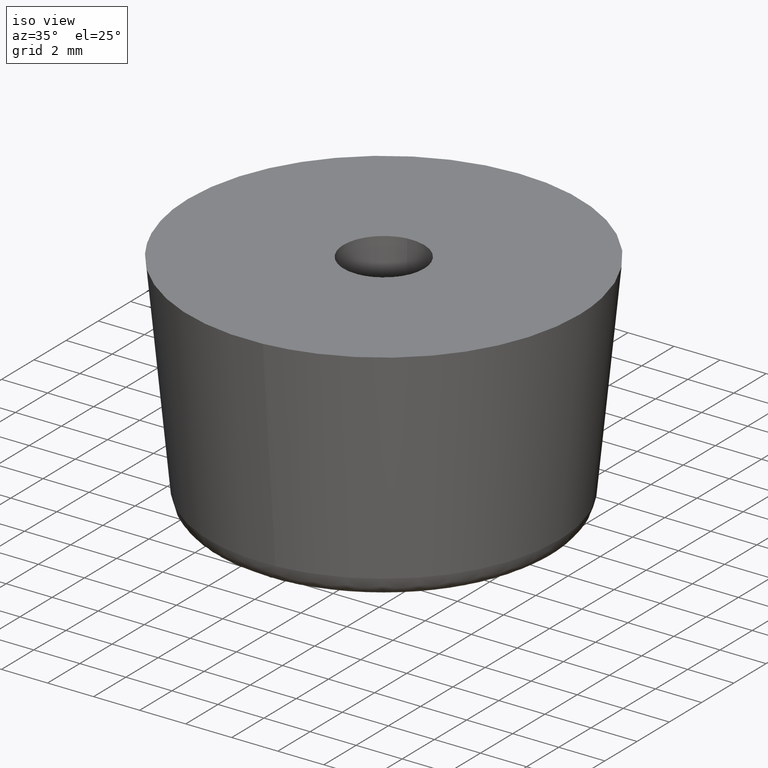
[diagram: clean part render]
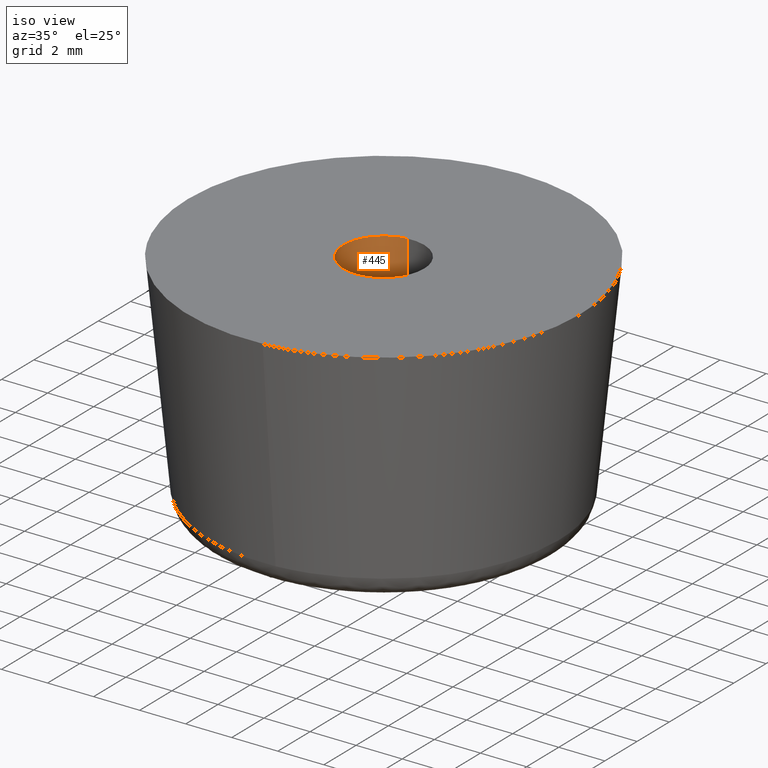
[diagram: same view with one face highlighted and labeled with its STEP entity id]
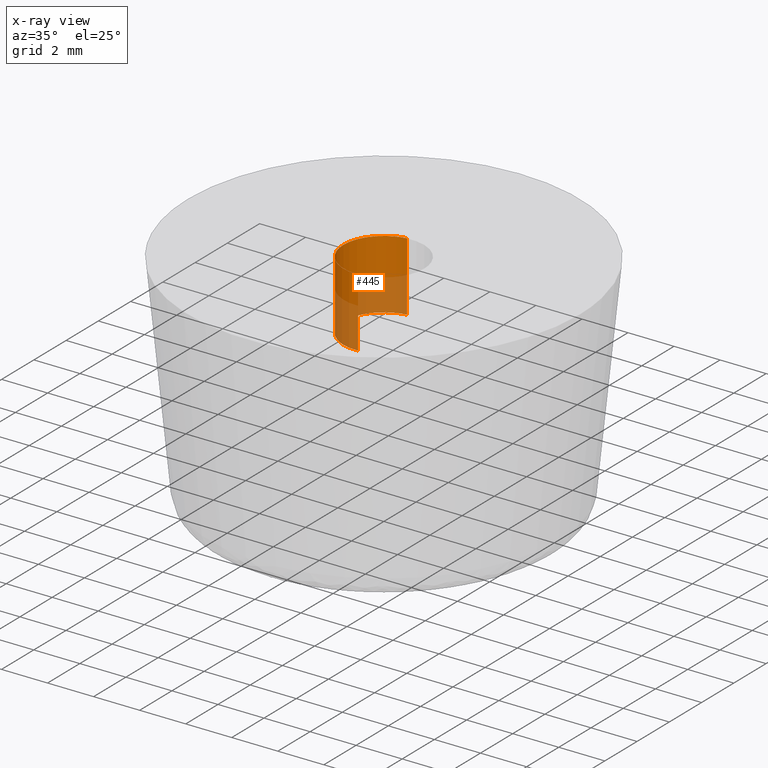
[diagram: x-ray of the same camera — body ghosted, the highlighted face saturated]
A machine part, iso view. The second image highlights one B-rep face of the part: STEP entity #445.
The next image is the same camera in x-ray: the body ghosted, the highlighted face saturated — about 47% of this face is hidden behind the body in this view.
In plain terms, the highlighted face is a freeform B-spline surface patch.
Its self-contained STEP definition (entity closure, byte-faithful):
#282=CARTESIAN_POINT('',(-0.206559910658016,1.737766671135383,10.0));
#283=VERTEX_POINT('',#282);
#301=CARTESIAN_POINT('',(-0.206559910658016,1.737766671135383,7.0));
#302=VERTEX_POINT('',#301);
#303=CARTESIAN_POINT('',(-0.206559910658016,1.737766671135383,10.0));
#304=CARTESIAN_POINT('',(-0.206559910658016,1.737766671135383,7.0));
#305=QUASI_UNIFORM_CURVE('',1,(#303,#304),.UNSPECIFIED.,.F.,.U.);
#306=EDGE_CURVE('',#283,#302,#305,.T.);
#325=CARTESIAN_POINT('',(0.106832578854710,-1.746736041904911,7.0));
#326=VERTEX_POINT('',#325);
#340=CARTESIAN_POINT('',(0.106832550060752,-1.746736043665946,9.999999999999979));
#341=VERTEX_POINT('',#340);
#342=CARTESIAN_POINT('',(0.106832550060752,-1.746736043665946,9.999999999999979));
#343=CARTESIAN_POINT('',(0.106832578854710,-1.746736041904911,7.0));
#344=QUASI_UNIFORM_CURVE('',1,(#342,#343),.UNSPECIFIED.,.F.,.U.);
#345=EDGE_CURVE('',#341,#326,#344,.T.);
#363=CARTESIAN_POINT('',(0.106834944186000,-1.746735897238267,10.074999999999999));
#364=CARTESIAN_POINT('',(-1.639900953052267,-1.853570841424267,10.075000000000001));
#365=CARTESIAN_POINT('',(-1.746735897238267,-0.106834944186000,10.074999999999999));
#366=CARTESIAN_POINT('',(-1.847625844281923,1.542701108969127,10.074999999999999));
#367=CARTESIAN_POINT('',(-0.206559910649327,1.737766671136416,10.075000000000001));
#368=CARTESIAN_POINT('',(0.106834944186000,-1.746735897238267,6.923124999999999));
#369=CARTESIAN_POINT('',(-1.639900953052267,-1.853570841424267,6.923124999999999));
#370=CARTESIAN_POINT('',(-1.746735897238267,-0.106834944186000,6.923124999999999));
#371=CARTESIAN_POINT('',(-1.847625844281923,1.542701108969127,6.923124999999999));
#372=CARTESIAN_POINT('',(-0.206559910649327,1.737766671136416,6.923125000000000));
#380=(BOUNDED_SURFACE()B_SPLINE_SURFACE(2,1,((#363,#368),(#364,#369),(#365,#370),(#366,#371),(#367,#372)),.UNSPECIFIED.,.F.,.F.,.U.)B_SPLINE_SURFACE_WITH_KNOTS((3,2,3),(2,2),(0.0,1.570796326794897,3.078760800517997),(0.0,3.151875000000001),.UNSPECIFIED.)GEOMETRIC_REPRESENTATION_ITEM()RATIONAL_B_SPLINE_SURFACE(((1.0,1.0),(0.707106781186548,0.707106781186548),(1.0,1.0),(0.718822509939086,0.718822509939086),(0.977505800795127,0.977505800795127)))REPRESENTATION_ITEM('')SURFACE());
#381=CARTESIAN_POINT('',(-1.750000000000000,0.0,10.0));
#382=VERTEX_POINT('',#381);
#383=CARTESIAN_POINT('',(-1.750000000000000,0.0,10.0));
#384=CARTESIAN_POINT('',(-1.750000000000001,1.554305420399242,10.000000000000002));
#385=CARTESIAN_POINT('',(-0.206559910658016,1.737766671135384,10.000000000000002));
#393=(BOUNDED_CURVE()B_SPLINE_CURVE(2,(#383,#384,#385),.UNSPECIFIED.,.F.,.U.)B_SPLINE_CURVE_WITH_KNOTS((3,3),(0.0,0.229562473513954),.UNSPECIFIED.)CURVE()GEOMETRIC_REPRESENTATION_ITEM()RATIONAL_B_SPLINE_CURVE((1.0,0.731050832854880,0.956026754184574))REPRESENTATION_ITEM(''));
#394=EDGE_CURVE('',#382,#283,#393,.T.);
#395=ORIENTED_EDGE('',*,*,#394,.F.);
#396=CARTESIAN_POINT('',(0.106832550060752,-1.746736043665946,9.999999999999979));
#397=CARTESIAN_POINT('',(0.053466135353585,-1.750000000000000,10.000000000000002));
#398=CARTESIAN_POINT('',(0.0,-1.750000000000000,10.0));
#399=CARTESIAN_POINT('',(-1.750000000000000,-1.750000000000000,10.0));
#400=CARTESIAN_POINT('',(-1.750000000000000,0.0,10.0));
#408=(BOUNDED_CURVE()B_SPLINE_CURVE(2,(#396,#397,#398,#399,#400),.UNSPECIFIED.,.F.,.U.)B_SPLINE_CURVE_WITH_KNOTS((3,2,3),(0.739333198739483,0.750000000000000,1.0),.UNSPECIFIED.)CURVE()GEOMETRIC_REPRESENTATION_ITEM()RATIONAL_B_SPLINE_CURVE((0.976072548532919,0.987503064977455,1.0,0.707106781186547,1.0))REPRESENTATION_ITEM(''));
#409=EDGE_CURVE('',#341,#382,#408,.T.);
#410=ORIENTED_EDGE('',*,*,#409,.F.);
#411=ORIENTED_EDGE('',*,*,#345,.T.);
#412=CARTESIAN_POINT('',(-1.750000000000000,0.0,7.0));
#413=VERTEX_POINT('',#412);
#414=CARTESIAN_POINT('',(0.106832578854710,-1.746736041904911,7.0));
#415=CARTESIAN_POINT('',(0.053466149790929,-1.750000000000000,7.0));
#416=CARTESIAN_POINT('',(0.0,-1.750000000000000,7.0));
#417=CARTESIAN_POINT('',(-1.750000000000000,-1.750000000000000,6.999999999999999));
#418=CARTESIAN_POINT('',(-1.750000000000000,0.0,7.0));
#426=(BOUNDED_CURVE()B_SPLINE_CURVE(2,(#414,#415,#416,#417,#418),.UNSPECIFIED.,.F.,.U.)B_SPLINE_CURVE_WITH_KNOTS((3,2,3),(0.739333195895145,0.750000000000000,1.0),.UNSPECIFIED.)CURVE()GEOMETRIC_REPRESENTATION_ITEM()RATIONAL_B_SPLINE_CURVE((0.976072542436950,0.987503061645106,1.0,0.707106781186547,1.0))REPRESENTATION_ITEM(''));
#427=EDGE_CURVE('',#326,#413,#426,.T.);
#428=ORIENTED_EDGE('',*,*,#427,.T.);
#429=CARTESIAN_POINT('',(-1.750000000000000,0.0,7.0));
#430=CARTESIAN_POINT('',(-1.750000000000001,1.554305420399242,7.0));
#431=CARTESIAN_POINT('',(-0.206559910658016,1.737766671135384,6.999999999999999));
#439=(BOUNDED_CURVE()B_SPLINE_CURVE(2,(#429,#430,#431),.UNSPECIFIED.,.F.,.U.)B_SPLINE_CURVE_WITH_KNOTS((3,3),(0.0,0.229562473513954),.UNSPECIFIED.)CURVE()GEOMETRIC_REPRESENTATION_ITEM()RATIONAL_B_SPLINE_CURVE((1.0,0.731050832854880,0.956026754184574))REPRESENTATION_ITEM(''));
#440=EDGE_CURVE('',#413,#302,#439,.T.);
#441=ORIENTED_EDGE('',*,*,#440,.T.);
#442=ORIENTED_EDGE('',*,*,#306,.F.);
#443=EDGE_LOOP('',(#395,#410,#411,#428,#441,#442));
#444=FACE_OUTER_BOUND('',#443,.T.);
#445=ADVANCED_FACE('',(#444),#380,.F.);